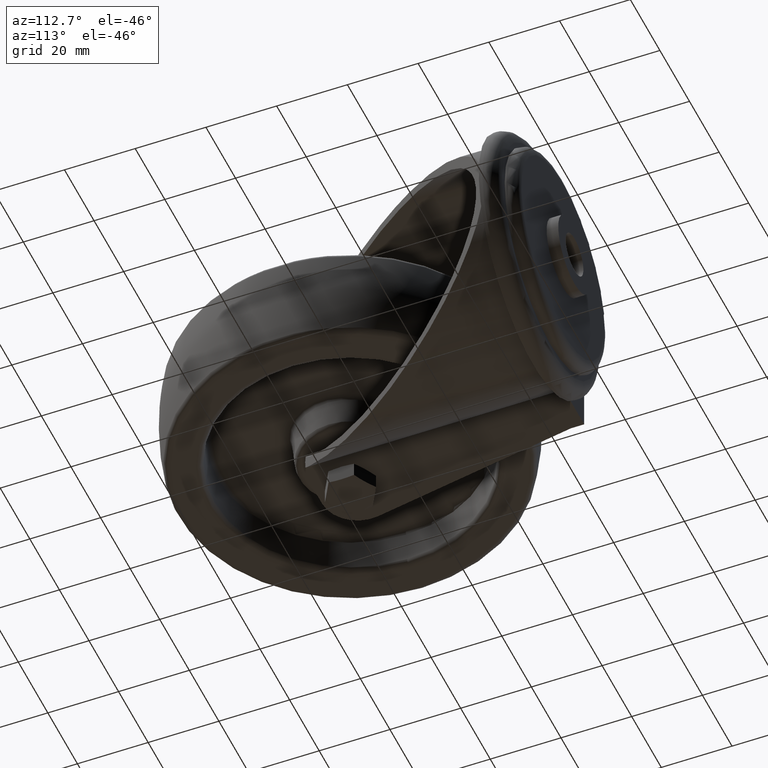
[diagram: clean part render]
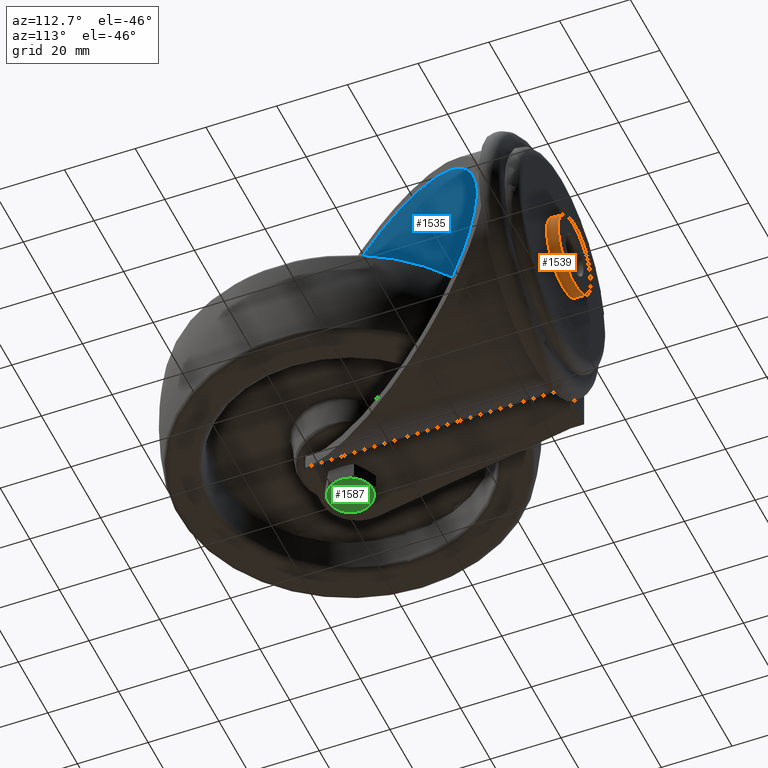
[diagram: same view with three faces highlighted in distinct colors, each labeled with its STEP entity id]
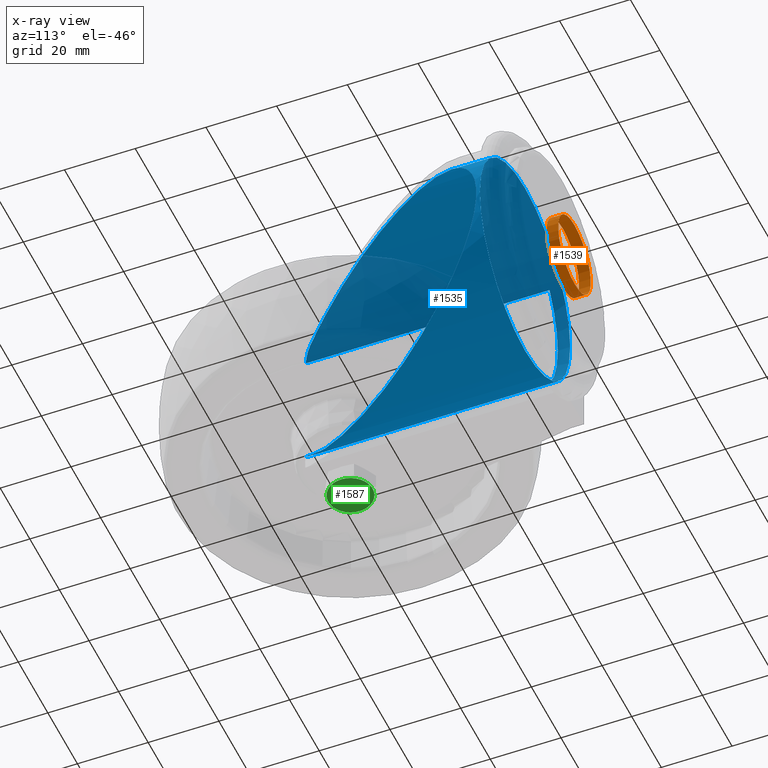
[diagram: x-ray of the same camera — body ghosted, the three highlighted faces saturated]
A machine part, auxiliary view with three faces highlighted in distinct colors.
The next image is the same camera in x-ray (body ghosted, the three faces saturated) — at least one of them is partly hidden behind the body in this view.
Their STEP definitions:

[orange] entity #1539 — the highlighted cylindrical surface (bore or boss wall) has radius 11 mm, axis along (0, -1, 0).
#228=FACE_OUTER_BOUND('',#335,.T.);
#335=EDGE_LOOP('',(#1116,#1117,#1118,#1119));
#460=CIRCLE('',#1774,11.);
#462=CIRCLE('',#1777,11.);
#585=LINE('',#2604,#649);
#649=VECTOR('',#2065,11.);
#721=VERTEX_POINT('',#2597);
#723=VERTEX_POINT('',#2602);
#874=EDGE_CURVE('',#721,#721,#460,.T.);
#876=EDGE_CURVE('',#723,#723,#462,.T.);
#877=EDGE_CURVE('',#723,#721,#585,.T.);
#1116=ORIENTED_EDGE('',*,*,#876,.F.);
#1117=ORIENTED_EDGE('',*,*,#877,.T.);
#1118=ORIENTED_EDGE('',*,*,#874,.T.);
#1119=ORIENTED_EDGE('',*,*,#877,.F.);
#1513=CYLINDRICAL_SURFACE('',#1776,11.);
#1539=ADVANCED_FACE('',(#228),#1513,.T.);
#1774=AXIS2_PLACEMENT_3D('',#2598,#2057,#2058);
#1776=AXIS2_PLACEMENT_3D('',#2601,#2061,#2062);
#1777=AXIS2_PLACEMENT_3D('',#2603,#2063,#2064);
#2057=DIRECTION('center_axis',(0.,-1.,0.));
#2058=DIRECTION('ref_axis',(0.,0.,-1.));
#2061=DIRECTION('center_axis',(0.,-1.,0.));
#2062=DIRECTION('ref_axis',(0.,0.,-1.));
#2063=DIRECTION('center_axis',(0.,-1.,0.));
#2064=DIRECTION('ref_axis',(0.,0.,-1.));
#2065=DIRECTION('',(0.,1.,0.));
#2597=CARTESIAN_POINT('',(35.,78.,11.));
#2598=CARTESIAN_POINT('Origin',(35.,78.,0.));
#2601=CARTESIAN_POINT('Origin',(35.,66.2,0.));
#2602=CARTESIAN_POINT('',(35.,74.7,11.));
#2603=CARTESIAN_POINT('Origin',(35.,74.7,0.));
#2604=CARTESIAN_POINT('',(35.,66.2,11.));

[blue] entity #1535 — the highlighted cylindrical surface (bore or boss wall) has radius 30.5 mm, axis along (0, -1, 0).
#212=B_SPLINE_CURVE_WITH_KNOTS('',3,(#2502,#2503,#2504,#2505,#2506,#2507),
 .UNSPECIFIED.,.F.,.F.,(4,2,4),(7.83886459878174,8.14861997572344,8.32202138963717),
 .UNSPECIFIED.);
#213=B_SPLINE_CURVE_WITH_KNOTS('',3,(#2513,#2514,#2515,#2516,#2517,#2518),
 .UNSPECIFIED.,.F.,.F.,(4,2,4),(3.67470860947211,3.84811002338585,4.15786540032755),
 .UNSPECIFIED.);
#224=FACE_OUTER_BOUND('',#330,.T.);
#330=EDGE_LOOP('',(#1091,#1092,#1093,#1094,#1095,#1096,#1097,#1098,#1099,
#1100));
#456=CIRCLE('',#1763,30.5);
#457=CIRCLE('',#1765,30.5);
#554=ELLIPSE('',#1764,50.1597158237745,30.5);
#555=ELLIPSE('',#1766,50.1597158237745,30.5);
#577=LINE('',#2573,#641);
#578=LINE('',#2576,#642);
#579=LINE('',#2579,#643);
#641=VECTOR('',#2029,30.5);
#642=VECTOR('',#2032,1000.);
#643=VECTOR('',#2035,1000.);
#690=VERTEX_POINT('',#2485);
#694=VERTEX_POINT('',#2500);
#695=VERTEX_POINT('',#2509);
#697=VERTEX_POINT('',#2512);
#713=VERTEX_POINT('',#2570);
#714=VERTEX_POINT('',#2572);
#715=VERTEX_POINT('',#2575);
#716=VERTEX_POINT('',#2577);
#833=EDGE_CURVE('',#690,#694,#212,.T.);
#835=EDGE_CURVE('',#697,#695,#213,.T.);
#858=EDGE_CURVE('',#713,#713,#456,.T.);
#859=EDGE_CURVE('',#713,#714,#577,.T.);
#860=EDGE_CURVE('',#697,#714,#554,.F.);
#861=EDGE_CURVE('',#695,#715,#578,.F.);
#862=EDGE_CURVE('',#715,#716,#457,.T.);
#863=EDGE_CURVE('',#716,#690,#579,.T.);
#864=EDGE_CURVE('',#714,#694,#555,.F.);
#1091=ORIENTED_EDGE('',*,*,#858,.F.);
#1092=ORIENTED_EDGE('',*,*,#859,.T.);
#1093=ORIENTED_EDGE('',*,*,#860,.F.);
#1094=ORIENTED_EDGE('',*,*,#835,.T.);
#1095=ORIENTED_EDGE('',*,*,#861,.T.);
#1096=ORIENTED_EDGE('',*,*,#862,.T.);
#1097=ORIENTED_EDGE('',*,*,#863,.T.);
#1098=ORIENTED_EDGE('',*,*,#833,.T.);
#1099=ORIENTED_EDGE('',*,*,#864,.F.);
#1100=ORIENTED_EDGE('',*,*,#859,.F.);
#1511=CYLINDRICAL_SURFACE('',#1762,30.5);
#1535=ADVANCED_FACE('',(#224),#1511,.F.);
#1762=AXIS2_PLACEMENT_3D('',#2569,#2025,#2026);
#1763=AXIS2_PLACEMENT_3D('',#2571,#2027,#2028);
#1764=AXIS2_PLACEMENT_3D('',#2574,#2030,#2031);
#1765=AXIS2_PLACEMENT_3D('',#2578,#2033,#2034);
#1766=AXIS2_PLACEMENT_3D('',#2580,#2036,#2037);
#2025=DIRECTION('center_axis',(0.,-1.,0.));
#2026=DIRECTION('ref_axis',(0.,0.,-1.));
#2027=DIRECTION('center_axis',(0.,-1.,0.));
#2028=DIRECTION('ref_axis',(0.,0.,-1.));
#2029=DIRECTION('',(0.,-1.,0.));
#2030=DIRECTION('center_axis',(0.79389285693816,-0.608057671362319,0.));
#2031=DIRECTION('ref_axis',(-0.608057671362319,-0.79389285693816,0.));
#2032=DIRECTION('',(0.,-1.,0.));
#2033=DIRECTION('center_axis',(0.,-1.,0.));
#2034=DIRECTION('ref_axis',(0.,0.,-1.));
#2035=DIRECTION('',(0.,-1.,0.));
#2036=DIRECTION('center_axis',(0.79389285693816,-0.608057671362319,0.));
#2037=DIRECTION('ref_axis',(-0.608057671362319,-0.79389285693816,0.));
#2485=CARTESIAN_POINT('',(10.0200080064064,-8.46743850357188,-17.5));
#2500=CARTESIAN_POINT('',(12.6389285693816,-6.08057671362318,-20.7420462942975));
#2502=CARTESIAN_POINT('Ctrl Pts',(10.0200080064064,-8.46743850357188,-17.5));
#2503=CARTESIAN_POINT('Ctrl Pts',(10.5694881377737,-8.12220556246434,-18.2843433875539));
#2504=CARTESIAN_POINT('Ctrl Pts',(11.1369077436319,-7.69336923898673,-19.0148437429139));
#2505=CARTESIAN_POINT('Ctrl Pts',(12.0152196884592,-6.83245133225283,-20.0546377836269));
#2506=CARTESIAN_POINT('Ctrl Pts',(12.3342613330729,-6.47835665134959,-20.413598187635));
#2507=CARTESIAN_POINT('Ctrl Pts',(12.6389285693816,-6.08057671362319,-20.7420462942975));
#2509=CARTESIAN_POINT('',(10.0200080064064,-8.46743850357188,17.5));
#2512=CARTESIAN_POINT('',(12.6389285693816,-6.08057671362318,20.7420462942975));
#2513=CARTESIAN_POINT('Ctrl Pts',(12.6389285693816,-6.08057671362319,20.7420462942975));
#2514=CARTESIAN_POINT('Ctrl Pts',(12.3342613330729,-6.47835665134959,20.413598187635));
#2515=CARTESIAN_POINT('Ctrl Pts',(12.0152196884591,-6.83245133225284,20.0546377836269));
#2516=CARTESIAN_POINT('Ctrl Pts',(11.1369077436319,-7.69336923898673,19.0148437429139));
#2517=CARTESIAN_POINT('Ctrl Pts',(10.5694881377737,-8.12220556246434,18.2843433875539));
#2518=CARTESIAN_POINT('Ctrl Pts',(10.0200080064064,-8.46743850357188,17.5));
#2569=CARTESIAN_POINT('Origin',(35.,-10.,0.));
#2570=CARTESIAN_POINT('',(35.,64.,30.5));
#2571=CARTESIAN_POINT('Origin',(35.,64.,0.));
#2572=CARTESIAN_POINT('',(35.,23.1145074343638,30.5));
#2573=CARTESIAN_POINT('',(35.,-10.,30.5));
#2574=CARTESIAN_POINT('Origin',(35.,23.1145074343638,0.));
#2575=CARTESIAN_POINT('',(10.0200080064064,60.5,17.5));
#2576=CARTESIAN_POINT('',(10.0200080064064,-10.,17.5));
#2577=CARTESIAN_POINT('',(10.0200080064064,60.5,-17.5));
#2578=CARTESIAN_POINT('Origin',(35.,60.5,0.));
#2579=CARTESIAN_POINT('',(10.0200080064064,-10.,-17.5));
#2580=CARTESIAN_POINT('Origin',(35.,23.1145074343638,0.));

[green] entity #1587 — the highlighted planar face has unit normal (0, 0, 1).
#198=PLANE('',#1862);
#276=FACE_OUTER_BOUND('',#396,.T.);
#396=EDGE_LOOP('',(#1319,#1320,#1321,#1322,#1323,#1324));
#499=CIRCLE('',#1863,6.25833333333333);
#500=CIRCLE('',#1864,6.25833333333333);
#501=CIRCLE('',#1865,6.25833333333333);
#502=CIRCLE('',#1866,6.25833333333333);
#503=CIRCLE('',#1867,6.25833333333333);
#504=CIRCLE('',#1868,6.25833333333333);
#770=VERTEX_POINT('',#2829);
#771=VERTEX_POINT('',#2830);
#772=VERTEX_POINT('',#2832);
#773=VERTEX_POINT('',#2834);
#774=VERTEX_POINT('',#2836);
#775=VERTEX_POINT('',#2838);
#959=EDGE_CURVE('',#770,#771,#499,.T.);
#960=EDGE_CURVE('',#772,#770,#500,.T.);
#961=EDGE_CURVE('',#773,#772,#501,.T.);
#962=EDGE_CURVE('',#774,#773,#502,.T.);
#963=EDGE_CURVE('',#775,#774,#503,.T.);
#964=EDGE_CURVE('',#771,#775,#504,.T.);
#1319=ORIENTED_EDGE('',*,*,#959,.F.);
#1320=ORIENTED_EDGE('',*,*,#960,.F.);
#1321=ORIENTED_EDGE('',*,*,#961,.F.);
#1322=ORIENTED_EDGE('',*,*,#962,.F.);
#1323=ORIENTED_EDGE('',*,*,#963,.F.);
#1324=ORIENTED_EDGE('',*,*,#964,.F.);
#1587=ADVANCED_FACE('',(#276),#198,.F.);
#1862=AXIS2_PLACEMENT_3D('',#2828,#2255,#2256);
#1863=AXIS2_PLACEMENT_3D('',#2831,#2257,#2258);
#1864=AXIS2_PLACEMENT_3D('',#2833,#2259,#2260);
#1865=AXIS2_PLACEMENT_3D('',#2835,#2261,#2262);
#1866=AXIS2_PLACEMENT_3D('',#2837,#2263,#2264);
#1867=AXIS2_PLACEMENT_3D('',#2839,#2265,#2266);
#1868=AXIS2_PLACEMENT_3D('',#2840,#2267,#2268);
#2255=DIRECTION('center_axis',(1.,0.,0.));
#2256=DIRECTION('ref_axis',(0.,0.,-1.));
#2257=DIRECTION('center_axis',(1.,0.,0.));
#2258=DIRECTION('ref_axis',(0.,0.,-1.));
#2259=DIRECTION('center_axis',(1.,0.,0.));
#2260=DIRECTION('ref_axis',(0.,0.,-1.));
#2261=DIRECTION('center_axis',(1.,0.,0.));
#2262=DIRECTION('ref_axis',(0.,0.,-1.));
#2263=DIRECTION('center_axis',(1.,0.,0.));
#2264=DIRECTION('ref_axis',(0.,0.,-1.));
#2265=DIRECTION('center_axis',(1.,0.,0.));
#2266=DIRECTION('ref_axis',(0.,0.,-1.));
#2267=DIRECTION('center_axis',(1.,0.,0.));
#2268=DIRECTION('ref_axis',(0.,0.,-1.));
#2828=CARTESIAN_POINT('Origin',(0.,0.,0.));
#2829=CARTESIAN_POINT('',(0.,5.41987565201761,-3.12916666666667));
#2830=CARTESIAN_POINT('',(0.,5.41987565201761,3.12916666666667));
#2831=CARTESIAN_POINT('Origin',(0.,0.,0.));
#2832=CARTESIAN_POINT('',(0.,0.,-6.25833333333333));
#2833=CARTESIAN_POINT('Origin',(0.,0.,0.));
#2834=CARTESIAN_POINT('',(0.,-5.41987565201761,-3.12916666666667));
#2835=CARTESIAN_POINT('Origin',(0.,0.,0.));
#2836=CARTESIAN_POINT('',(0.,-5.41987565201761,3.12916666666667));
#2837=CARTESIAN_POINT('Origin',(0.,0.,0.));
#2838=CARTESIAN_POINT('',(0.,0.,6.25833333333333));
#2839=CARTESIAN_POINT('Origin',(0.,0.,0.));
#2840=CARTESIAN_POINT('Origin',(0.,0.,0.));